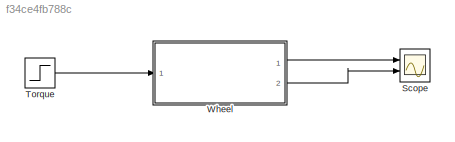
MODEL slx_f34ce4fb788c
KIND model
CONFIG AbsTol = auto
CONFIG EnableMultiTasking = off
CONFIG FixedStep = auto
CONFIG MaxStep = auto
CONFIG MinStep = auto
CONFIG RelTol = 1e-3
CONFIG SampleTimeConstraint = Unconstrained
CONFIG SolverName = VariableStepAuto
CONFIG StartTime = 0.0
CONFIG StopTime = 4
BLOCK [Scope] Scope
  Floating = off
  NumInputPorts = 2
  Ports = [2]
  ScopeSpecificationString = Simulink.scopes.TimeScopeBlockCfg('CurrentConfiguration', extmgr.ConfigurationSet(extmgr.Configuration('Core','General UI',true),extmgr.Configuration('Core','Source UI',true),extmgr.Configuration('Sources','WiredSimulink',true),extmgr.Configuration('Visuals','Time Domain',true,'SerializedDisplays',{struct('MinYLimReal','-0.9375','MaxYLimReal','8.4375','YLabelReal','','MinYLimMag','0.00000','MaxYLi...<+1757ch>
BLOCK [Step] Torque
  After = 0.05
  SampleTime = 0
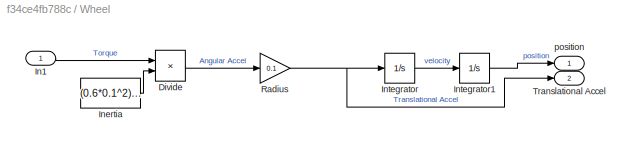
BLOCK [SubSystem] Wheel
  Ports = [1, 2]
  RequestExecContextInheritance = off
BLOCK [Product] Wheel/Divide
  Inputs = */
  Ports = [2, 1]
BLOCK [Inport] Wheel/In1
  IconDisplay = Signal name
BLOCK [Constant] Wheel/Inertia
  Value = (0.6*0.1^2)/2
BLOCK [Integrator] Wheel/Integrator
  Ports = [1, 1]
BLOCK [Integrator] Wheel/Integrator1
  Ports = [1, 1]
BLOCK [Gain] Wheel/Radius
  Gain = 0.1
BLOCK [Outport] Wheel/Translational Accel
  Port = 2
BLOCK [Outport] Wheel/position
LINE Torque:1 -> Wheel:1
LINE Wheel/Divide:1 -> Wheel/Radius:1
LINE Wheel/In1:1 -> Wheel/Divide:1
LINE Wheel/Inertia:1 -> Wheel/Divide:2
LINE Wheel/Integrator1:1 -> Wheel/position:1
LINE Wheel/Integrator:1 -> Wheel/Integrator1:1
NET Wheel/Radius:1 -> Wheel/Integrator:1, Wheel/Translational Accel:1
LINE Wheel:1 -> Scope:1
LINE Wheel:2 -> Scope:2
note: NET lines group one-source signal fan-out (src -> all destinations, sorted); 1:1 wires keep LINE
